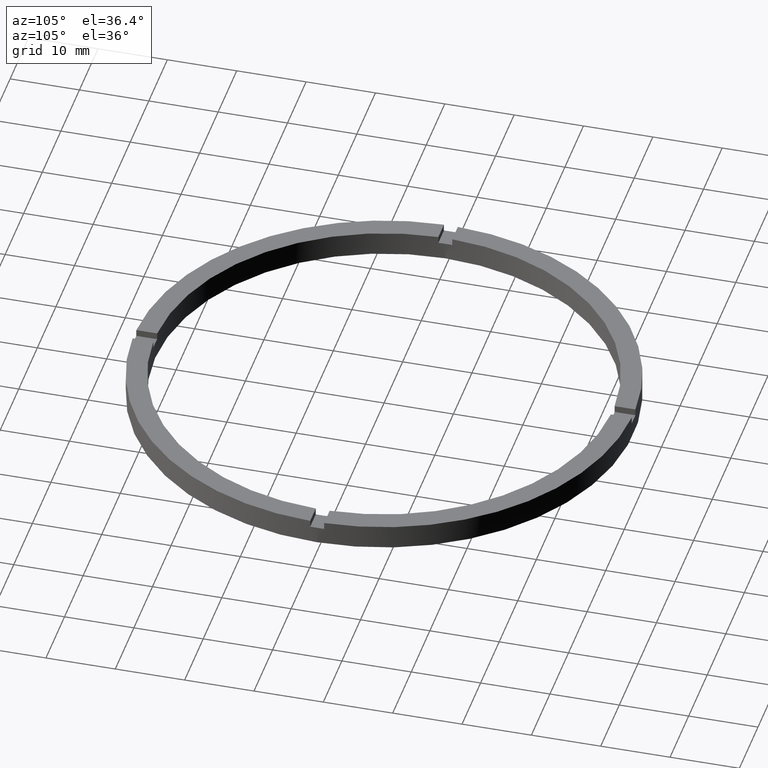
[diagram: clean part render]
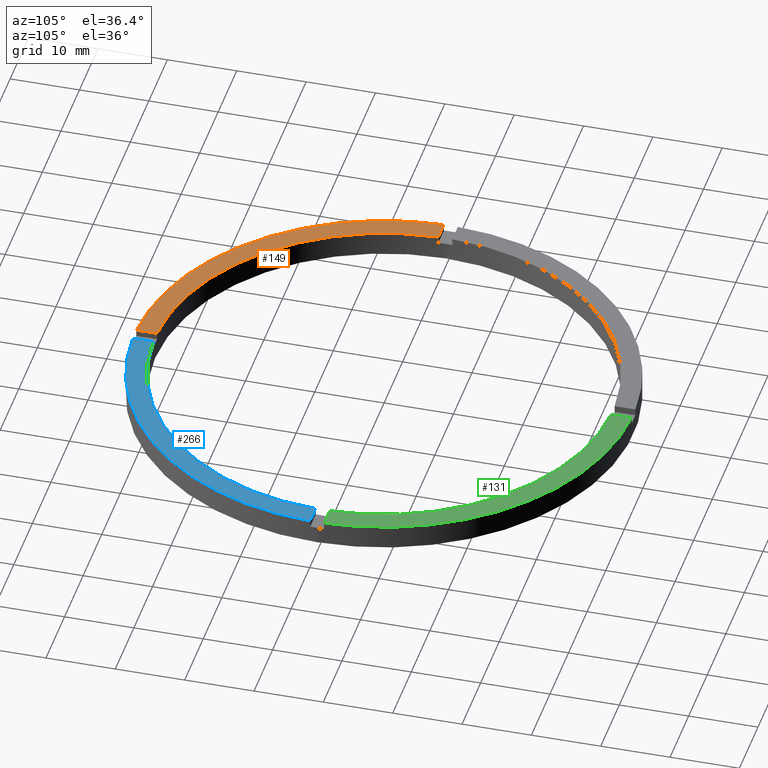
[diagram: same view with three faces highlighted in distinct colors, each labeled with its STEP entity id]
A machine part, auxiliary view with three faces highlighted in distinct colors.
Their STEP definitions:

[orange] entity #149 — the highlighted planar face has unit normal (0, 0, 1).
#21 = CIRCLE ( 'NONE', #187, 33.00000000000000000 ) ;
#23 = VECTOR ( 'NONE', #241, 1000.000000000000000 ) ;
#62 = PLANE ( 'NONE',  #215 ) ;
#107 = CARTESIAN_POINT ( 'NONE',  ( -1.000000000000160760, -32.98484500494128469, 3.500000000000000000 ) ) ;
#114 = CARTESIAN_POINT ( 'NONE',  ( 0.000000000000000000, 0.000000000000000000, 3.500000000000000000 ) ) ;
#121 = CARTESIAN_POINT ( 'NONE',  ( 0.000000000000000000, 0.000000000000000000, 3.500000000000000000 ) ) ;
#123 = DIRECTION ( 'NONE',  ( 1.000000000000000000, 0.000000000000000000, -0.000000000000000000 ) ) ;
#149 = ADVANCED_FACE ( 'NONE', ( #161 ), #62, .T. ) ;
#151 = ORIENTED_EDGE ( 'NONE', *, *, #390, .T. ) ;
#161 = FACE_OUTER_BOUND ( 'NONE', #467, .T. ) ;
#173 = VECTOR ( 'NONE', #600, 1000.000000000000000 ) ;
#187 = AXIS2_PLACEMENT_3D ( 'NONE', #114, #193, #434 ) ;
#193 = DIRECTION ( 'NONE',  ( 0.000000000000000000, 0.000000000000000000, 1.000000000000000000 ) ) ;
#208 = ORIENTED_EDGE ( 'NONE', *, *, #726, .F. ) ;
#215 = AXIS2_PLACEMENT_3D ( 'NONE', #439, #591, #123 ) ;
#228 = CARTESIAN_POINT ( 'NONE',  ( -1.000000000000160316, -35.98610843089315381, 3.500000000000000000 ) ) ;
#241 = DIRECTION ( 'NONE',  ( 1.000000000000000000, 1.951563910473907735E-16, -0.000000000000000000 ) ) ;
#277 = LINE ( 'NONE', #488, #23 ) ;
#279 = CARTESIAN_POINT ( 'NONE',  ( -32.98484500494128469, -1.000000000000026645, 3.500000000000000000 ) ) ;
#295 = ORIENTED_EDGE ( 'NONE', *, *, #326, .F. ) ;
#326 = EDGE_CURVE ( 'NONE', #556, #420, #431, .T. ) ;
#358 = VERTEX_POINT ( 'NONE', #686 ) ;
#388 = AXIS2_PLACEMENT_3D ( 'NONE', #121, #665, #595 ) ;
#390 = EDGE_CURVE ( 'NONE', #358, #420, #720, .T. ) ;
#420 = VERTEX_POINT ( 'NONE', #228 ) ;
#431 = LINE ( 'NONE', #545, #173 ) ;
#434 = DIRECTION ( 'NONE',  ( 1.000000000000000000, 0.000000000000000000, 0.000000000000000000 ) ) ;
#439 = CARTESIAN_POINT ( 'NONE',  ( 0.000000000000000000, 0.000000000000000000, 3.500000000000000000 ) ) ;
#467 = EDGE_LOOP ( 'NONE', ( #295, #473, #208, #151 ) ) ;
#473 = ORIENTED_EDGE ( 'NONE', *, *, #710, .F. ) ;
#488 = CARTESIAN_POINT ( 'NONE',  ( -26.00000000000018119, -1.000000000000025091, 3.500000000000000000 ) ) ;
#545 = CARTESIAN_POINT ( 'NONE',  ( -1.000000000000161648, -26.00000000000017408, 3.500000000000000000 ) ) ;
#556 = VERTEX_POINT ( 'NONE', #107 ) ;
#591 = DIRECTION ( 'NONE',  ( 0.000000000000000000, 0.000000000000000000, 1.000000000000000000 ) ) ;
#595 = DIRECTION ( 'NONE',  ( 1.000000000000000000, 0.000000000000000000, 0.000000000000000000 ) ) ;
#600 = DIRECTION ( 'NONE',  ( 1.301042606982605074E-16, -1.000000000000000000, 0.000000000000000000 ) ) ;
#665 = DIRECTION ( 'NONE',  ( 0.000000000000000000, 0.000000000000000000, 1.000000000000000000 ) ) ;
#669 = VERTEX_POINT ( 'NONE', #279 ) ;
#686 = CARTESIAN_POINT ( 'NONE',  ( -35.98610843089315381, -1.000000000000027089, 3.500000000000000000 ) ) ;
#710 = EDGE_CURVE ( 'NONE', #669, #556, #21, .T. ) ;
#720 = CIRCLE ( 'NONE', #388, 36.00000000000000000 ) ;
#726 = EDGE_CURVE ( 'NONE', #358, #669, #277, .T. ) ;

[blue] entity #266 — the highlighted planar face has unit normal (0, 0, 1).
#40 = EDGE_CURVE ( 'NONE', #383, #122, #649, .T. ) ;
#63 = EDGE_CURVE ( 'NONE', #549, #300, #676, .T. ) ;
#89 = DIRECTION ( 'NONE',  ( 0.000000000000000000, 0.000000000000000000, 1.000000000000000000 ) ) ;
#99 = DIRECTION ( 'NONE',  ( 0.000000000000000000, 0.000000000000000000, 1.000000000000000000 ) ) ;
#122 = VERTEX_POINT ( 'NONE', #765 ) ;
#148 = EDGE_CURVE ( 'NONE', #300, #122, #154, .T. ) ;
#150 = ORIENTED_EDGE ( 'NONE', *, *, #509, .F. ) ;
#154 = LINE ( 'NONE', #466, #158 ) ;
#158 = VECTOR ( 'NONE', #511, 1000.000000000000000 ) ;
#162 = AXIS2_PLACEMENT_3D ( 'NONE', #560, #89, #337 ) ;
#170 = DIRECTION ( 'NONE',  ( -1.301042606982605074E-16, 1.000000000000000000, -0.000000000000000000 ) ) ;
#223 = CARTESIAN_POINT ( 'NONE',  ( 32.98484500494128469, -1.000000000000158096, 3.500000000000000000 ) ) ;
#234 = CARTESIAN_POINT ( 'NONE',  ( 0.9999999999998393507, -32.98484500494129179, 3.500000000000000000 ) ) ;
#252 = DIRECTION ( 'NONE',  ( 0.000000000000000000, 0.000000000000000000, 1.000000000000000000 ) ) ;
#266 = ADVANCED_FACE ( 'NONE', ( #697 ), #529, .T. ) ;
#291 = ORIENTED_EDGE ( 'NONE', *, *, #40, .T. ) ;
#300 = VERTEX_POINT ( 'NONE', #223 ) ;
#310 = AXIS2_PLACEMENT_3D ( 'NONE', #400, #99, #480 ) ;
#337 = DIRECTION ( 'NONE',  ( 1.000000000000000000, 0.000000000000000000, 0.000000000000000000 ) ) ;
#372 = LINE ( 'NONE', #479, #623 ) ;
#383 = VERTEX_POINT ( 'NONE', #744 ) ;
#400 = CARTESIAN_POINT ( 'NONE',  ( 0.000000000000000000, 0.000000000000000000, 3.500000000000000000 ) ) ;
#405 = ORIENTED_EDGE ( 'NONE', *, *, #148, .F. ) ;
#464 = AXIS2_PLACEMENT_3D ( 'NONE', #661, #252, #592 ) ;
#466 = CARTESIAN_POINT ( 'NONE',  ( 25.99999999999998934, -1.000000000000158540, 3.500000000000000000 ) ) ;
#471 = ORIENTED_EDGE ( 'NONE', *, *, #63, .F. ) ;
#479 = CARTESIAN_POINT ( 'NONE',  ( 0.9999999999998384625, -26.00000000000017408, 3.500000000000000000 ) ) ;
#480 = DIRECTION ( 'NONE',  ( 1.000000000000000000, 0.000000000000000000, 0.000000000000000000 ) ) ;
#509 = EDGE_CURVE ( 'NONE', #383, #549, #372, .T. ) ;
#511 = DIRECTION ( 'NONE',  ( 1.000000000000000000, 6.505213034913025371E-17, 0.000000000000000000 ) ) ;
#529 = PLANE ( 'NONE',  #464 ) ;
#549 = VERTEX_POINT ( 'NONE', #234 ) ;
#560 = CARTESIAN_POINT ( 'NONE',  ( 0.000000000000000000, 0.000000000000000000, 3.500000000000000000 ) ) ;
#592 = DIRECTION ( 'NONE',  ( 1.000000000000000000, 0.000000000000000000, -0.000000000000000000 ) ) ;
#623 = VECTOR ( 'NONE', #170, 1000.000000000000000 ) ;
#649 = CIRCLE ( 'NONE', #162, 36.00000000000000000 ) ;
#661 = CARTESIAN_POINT ( 'NONE',  ( 0.000000000000000000, 0.000000000000000000, 3.500000000000000000 ) ) ;
#676 = CIRCLE ( 'NONE', #310, 33.00000000000000000 ) ;
#697 = FACE_OUTER_BOUND ( 'NONE', #728, .T. ) ;
#728 = EDGE_LOOP ( 'NONE', ( #405, #471, #150, #291 ) ) ;
#744 = CARTESIAN_POINT ( 'NONE',  ( 0.9999999999998397948, -35.98610843089316091, 3.500000000000000000 ) ) ;
#765 = CARTESIAN_POINT ( 'NONE',  ( 35.98610843089315381, -1.000000000000157874, 3.500000000000000000 ) ) ;

[green] entity #131 — the highlighted planar face has unit normal (0, 0, 1).
#19 = DIRECTION ( 'NONE',  ( -1.000000000000000000, -6.505213034913025371E-17, -0.000000000000000000 ) ) ;
#36 = VERTEX_POINT ( 'NONE', #413 ) ;
#41 = CIRCLE ( 'NONE', #262, 33.00000000000000000 ) ;
#45 = VERTEX_POINT ( 'NONE', #705 ) ;
#48 = CARTESIAN_POINT ( 'NONE',  ( 0.000000000000000000, 0.000000000000000000, 3.500000000000000000 ) ) ;
#111 = ORIENTED_EDGE ( 'NONE', *, *, #338, .F. ) ;
#120 = DIRECTION ( 'NONE',  ( 1.000000000000000000, 0.000000000000000000, 0.000000000000000000 ) ) ;
#131 = ADVANCED_FACE ( 'NONE', ( #146 ), #568, .T. ) ;
#133 = AXIS2_PLACEMENT_3D ( 'NONE', #48, #363, #120 ) ;
#146 = FACE_OUTER_BOUND ( 'NONE', #281, .T. ) ;
#178 = CARTESIAN_POINT ( 'NONE',  ( 0.000000000000000000, 0.000000000000000000, 3.500000000000000000 ) ) ;
#246 = CARTESIAN_POINT ( 'NONE',  ( 32.98484500494129179, 0.9999999999998419042, 3.500000000000000000 ) ) ;
#262 = AXIS2_PLACEMENT_3D ( 'NONE', #178, #268, #644 ) ;
#268 = DIRECTION ( 'NONE',  ( 0.000000000000000000, 0.000000000000000000, 1.000000000000000000 ) ) ;
#274 = CIRCLE ( 'NONE', #133, 36.00000000000000000 ) ;
#281 = EDGE_LOOP ( 'NONE', ( #111, #633, #414, #339 ) ) ;
#335 = LINE ( 'NONE', #654, #627 ) ;
#338 = EDGE_CURVE ( 'NONE', #732, #45, #689, .T. ) ;
#339 = ORIENTED_EDGE ( 'NONE', *, *, #670, .T. ) ;
#362 = AXIS2_PLACEMENT_3D ( 'NONE', #640, #724, #769 ) ;
#363 = DIRECTION ( 'NONE',  ( 0.000000000000000000, 0.000000000000000000, 1.000000000000000000 ) ) ;
#377 = DIRECTION ( 'NONE',  ( 0.000000000000000000, 1.000000000000000000, 0.000000000000000000 ) ) ;
#413 = CARTESIAN_POINT ( 'NONE',  ( 35.98610843089316091, 0.9999999999998421263, 3.500000000000000000 ) ) ;
#414 = ORIENTED_EDGE ( 'NONE', *, *, #512, .F. ) ;
#512 = EDGE_CURVE ( 'NONE', #36, #680, #335, .T. ) ;
#568 = PLANE ( 'NONE',  #362 ) ;
#617 = CARTESIAN_POINT ( 'NONE',  ( 0.9999999999999749090, 25.99999999999999645, 3.500000000000000000 ) ) ;
#624 = EDGE_CURVE ( 'NONE', #680, #732, #41, .T. ) ;
#627 = VECTOR ( 'NONE', #19, 1000.000000000000000 ) ;
#633 = ORIENTED_EDGE ( 'NONE', *, *, #624, .F. ) ;
#640 = CARTESIAN_POINT ( 'NONE',  ( 0.000000000000000000, 0.000000000000000000, 3.500000000000000000 ) ) ;
#644 = DIRECTION ( 'NONE',  ( 1.000000000000000000, 0.000000000000000000, 0.000000000000000000 ) ) ;
#654 = CARTESIAN_POINT ( 'NONE',  ( 25.99999999999998934, 0.9999999999998414602, 3.500000000000000000 ) ) ;
#670 = EDGE_CURVE ( 'NONE', #36, #45, #274, .T. ) ;
#680 = VERTEX_POINT ( 'NONE', #246 ) ;
#688 = VECTOR ( 'NONE', #377, 1000.000000000000000 ) ;
#689 = LINE ( 'NONE', #617, #688 ) ;
#705 = CARTESIAN_POINT ( 'NONE',  ( 0.9999999999999749090, 35.98610843089316091, 3.500000000000000000 ) ) ;
#724 = DIRECTION ( 'NONE',  ( 0.000000000000000000, 0.000000000000000000, 1.000000000000000000 ) ) ;
#732 = VERTEX_POINT ( 'NONE', #777 ) ;
#769 = DIRECTION ( 'NONE',  ( 1.000000000000000000, 0.000000000000000000, -0.000000000000000000 ) ) ;
#777 = CARTESIAN_POINT ( 'NONE',  ( 0.9999999999999749090, 32.98484500494129179, 3.500000000000000000 ) ) ;